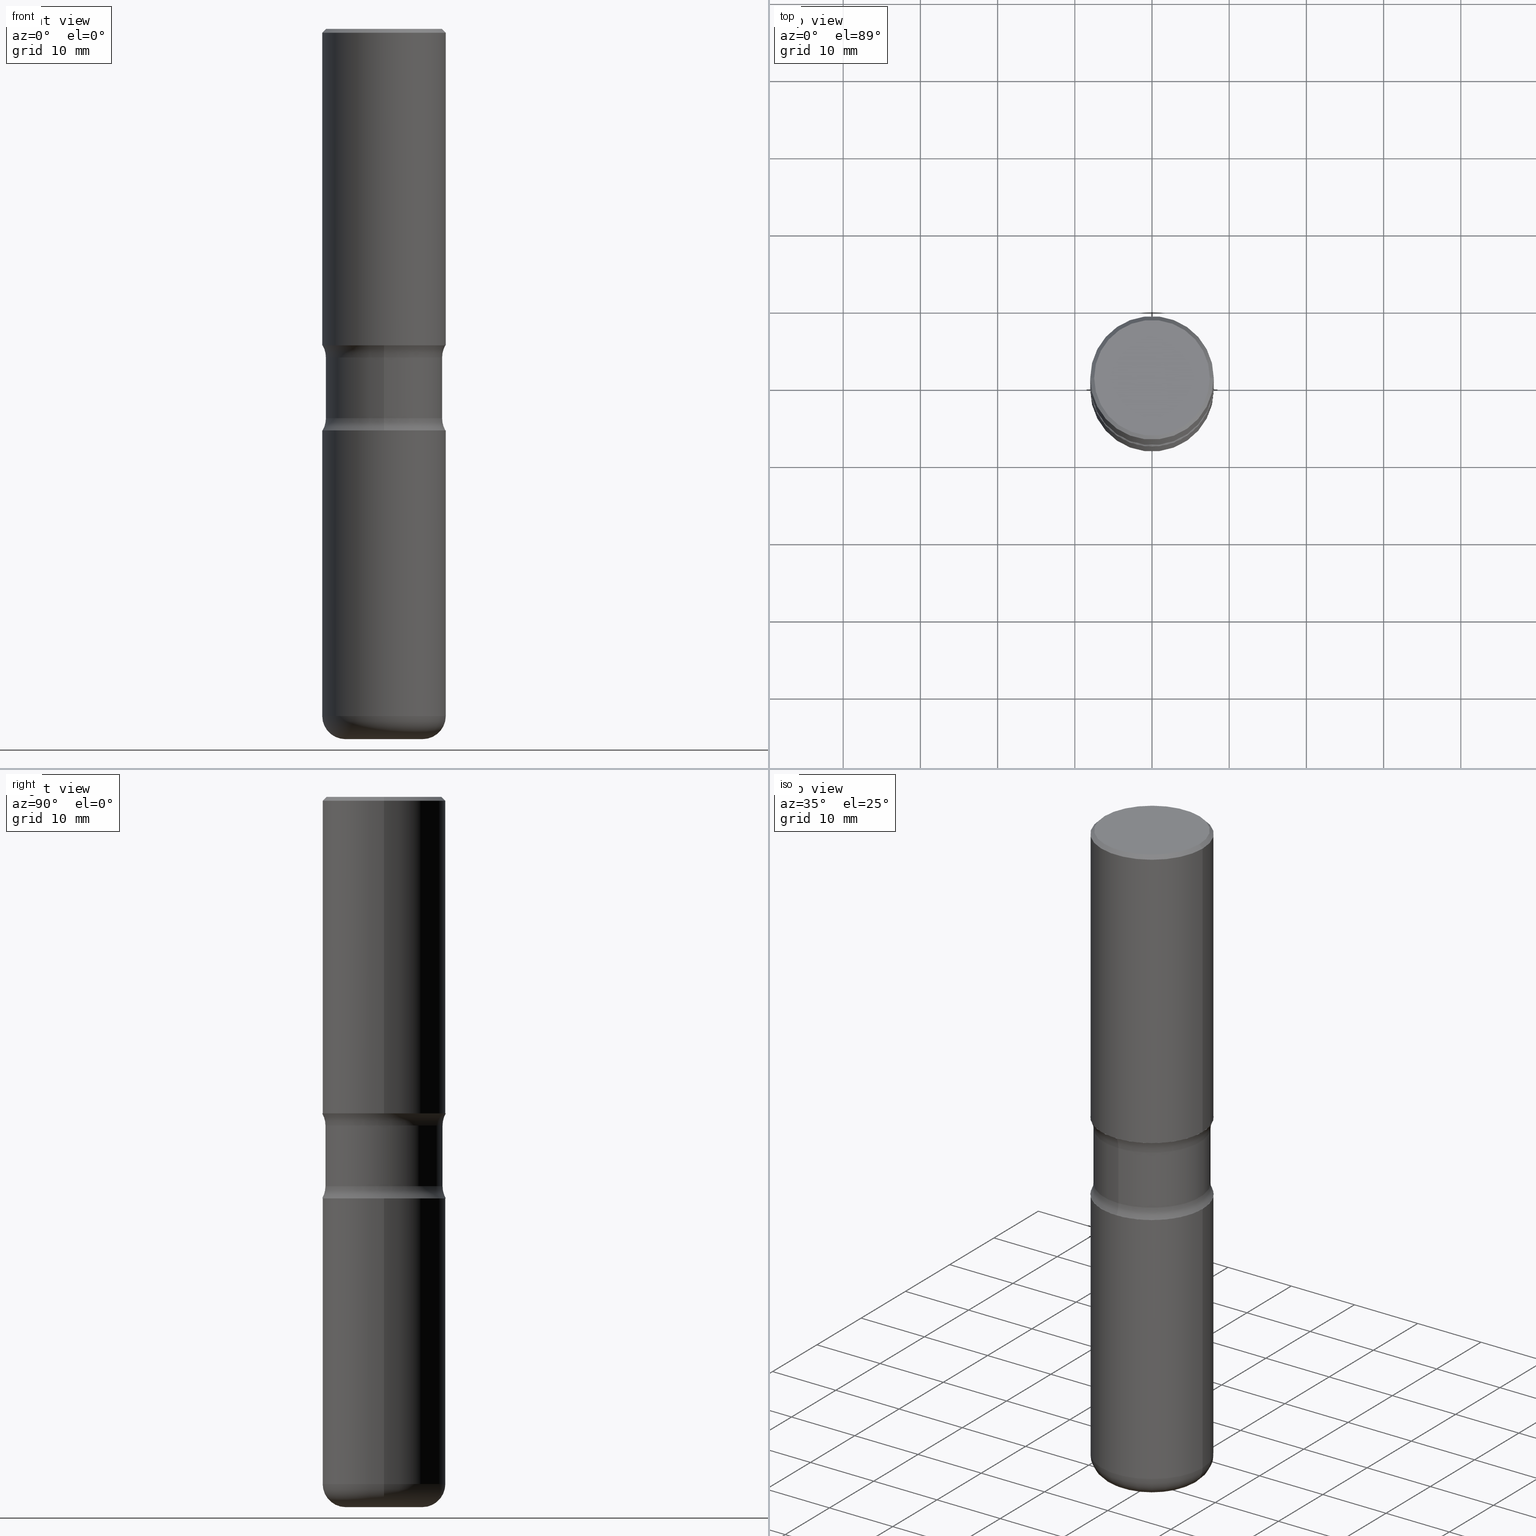
[diagram: canonical four-view strip — front | top / right | iso, engineering-drawing reading convention]
A machine part, canonical four-view strip (front | top / right | iso — engineering-drawing reading convention). The complete STEP part file that produces these views, byte-faithful:
ISO-10303-21;
HEADER;
FILE_DESCRIPTION (( 'STEP AP203' ),
    '1' );
FILE_NAME ('44752.STEP',
    '2024-03-02T02:47:02',
    ( '' ),
    ( '' ),
    'SwSTEP 2.0',
    'SolidWorks 2023',
    '' );
FILE_SCHEMA (( 'CONFIG_CONTROL_DESIGN' ));
ENDSEC;

DATA;
#1 = AXIS2_PLACEMENT_3D ( 'NONE', #288, #77, #419 ) ;
#2 = PERSON_AND_ORGANIZATION ( #9, #462 ) ;
#3 = ORIENTED_EDGE ( 'NONE', *, *, #141, .F. ) ;
#4 = DIRECTION ( 'NONE',  ( 2.445468806185136597E-29, -3.491481338843145583E-15, -1.000000000000000000 ) ) ;
#5 = ORIENTED_EDGE ( 'NONE', *, *, #149, .T. ) ;
#6 = ORIENTED_EDGE ( 'NONE', *, *, #249, .F. ) ;
#7 = DIRECTION ( 'NONE',  ( -6.982962677686265922E-15, -1.000000000000000000, 3.511873183492796268E-15 ) ) ;
#8 = ADVANCED_FACE ( 'NONE', ( #398 ), #238, .F. ) ;
#9 = PERSON ( 'UNSPECIFIED', 'UNSPECIFIED', 'UNSPECIFIED', ('UNSPECIFIED'), ('UNSPECIFIED'), ('UNSPECIFIED') ) ;
#10 = CC_DESIGN_PERSON_AND_ORGANIZATION_ASSIGNMENT ( #2, #390, ( #168 ) ) ;
#11 = EDGE_LOOP ( 'NONE', ( #354, #361 ) ) ;
#12 = ORIENTED_EDGE ( 'NONE', *, *, #529, .F. ) ;
#13 = AXIS2_PLACEMENT_3D ( 'NONE', #512, #4, #306 ) ;
#14 = DIRECTION ( 'NONE',  ( 6.982962677686265922E-15, 1.000000000000000000, -3.511873183492796268E-15 ) ) ;
#15 = CARTESIAN_POINT ( 'NONE',  ( 1.244624770094737813E-28, 3.506576687062802322E-15, -2.047200000000000131 ) ) ;
#16 = CONICAL_SURFACE ( 'NONE', #366, 0.3149500000000001743, 0.7853981633974460586 ) ;
#17 = VERTEX_POINT ( 'NONE', #165 ) ;
#18 = EDGE_CURVE ( 'NONE', #247, #268, #459, .T. ) ;
#19 = FACE_OUTER_BOUND ( 'NONE', #250, .T. ) ;
#20 = COORDINATED_UNIVERSAL_TIME_OFFSET ( 5, 0, .BEHIND. ) ;
#21 = EDGE_LOOP ( 'NONE', ( #323, #526 ) ) ;
#22 = VERTEX_POINT ( 'NONE', #83 ) ;
#23 = DIRECTION ( 'NONE',  ( -2.445468806185136597E-29, 3.491481338843145583E-15, 1.000000000000000000 ) ) ;
#24 = SECURITY_CLASSIFICATION_LEVEL ( 'unclassified' ) ;
#25 = DIRECTION ( 'NONE',  ( 6.982962677686264344E-15, 1.000000000000000000, -3.469564049740291192E-15 ) ) ;
#26 = VERTEX_POINT ( 'NONE', #202 ) ;
#27 = ORIENTED_EDGE ( 'NONE', *, *, #501, .F. ) ;
#28 = APPROVAL ( #112, 'UNSPECIFIED' ) ;
#29 = FACE_OUTER_BOUND ( 'NONE', #560, .T. ) ;
#30 = PERSON_AND_ORGANIZATION ( #9, #462 ) ;
#31 = AXIS2_PLACEMENT_3D ( 'NONE', #368, #537, #153 ) ;
#32 = ORIENTED_EDGE ( 'NONE', *, *, #115, .T. ) ;
#33 = LOCAL_TIME ( 21, 47, 2.000000000000000000, #95 ) ;
#34 = ORIENTED_EDGE ( 'NONE', *, *, #155, .F. ) ;
#35 = FACE_OUTER_BOUND ( 'NONE', #307, .T. ) ;
#36 = APPROVAL_ROLE ( '' ) ;
#37 = FACE_OUTER_BOUND ( 'NONE', #409, .T. ) ;
#38 = PERSON_AND_ORGANIZATION ( #9, #462 ) ;
#39 = DIRECTION ( 'NONE',  ( -2.445468806185136877E-29, 3.491481338843145188E-15, 1.000000000000000000 ) ) ;
#40 = ORIENTED_EDGE ( 'NONE', *, *, #399, .F. ) ;
#41 = LINE ( 'NONE', #122, #426 ) ;
#42 = AXIS2_PLACEMENT_3D ( 'NONE', #236, #23, #187 ) ;
#43 = CARTESIAN_POINT ( 'NONE',  ( -2.905420902056200286E-15, -0.4235000000000055387, -1.676083042035703574 ) ) ;
#44 = CARTESIAN_POINT ( 'NONE',  ( 2.957284694000172985E-15, 0.4234999999999939369, -1.676083042035706461 ) ) ;
#45 = CARTESIAN_POINT ( 'NONE',  ( 0.3149500000000002853, -2.199284095337291843E-15, 1.535751875536931531E-29 ) ) ;
#46 = ORIENTED_EDGE ( 'NONE', *, *, #220, .T. ) ;
#47 = CIRCLE ( 'NONE', #124, 0.2984999999999998765 ) ;
#48 = EDGE_CURVE ( 'NONE', #311, #247, #496, .T. ) ;
#49 = AXIS2_PLACEMENT_3D ( 'NONE', #147, #481, #106 ) ;
#50 = EDGE_LOOP ( 'NONE', ( #403, #521, #358, #6 ) ) ;
#51 = DIRECTION ( 'NONE',  ( -2.445468806185136597E-29, 3.491481338843145583E-15, 1.000000000000000000 ) ) ;
#52 = EDGE_CURVE ( 'NONE', #371, #256, #215, .T. ) ;
#53 =( CONVERSION_BASED_UNIT ( 'INCH', #435 ) LENGTH_UNIT ( ) NAMED_UNIT ( #87 ) );
#54 = FACE_OUTER_BOUND ( 'NONE', #211, .T. ) ;
#55 = AXIS2_PLACEMENT_3D ( 'NONE', #319, #376, #364 ) ;
#56 = APPROVAL_ROLE ( '' ) ;
#57 = FACE_OUTER_BOUND ( 'NONE', #510, .T. ) ;
#58 = ORIENTED_EDGE ( 'NONE', *, *, #286, .F. ) ;
#59 = CARTESIAN_POINT ( 'NONE',  ( -0.3149500000000001743, 2.129454468560427756E-15, -0.02000000000000006981 ) ) ;
#60 = DIRECTION ( 'NONE',  ( -2.445468806185136597E-29, 3.491481338843145583E-15, 1.000000000000000000 ) ) ;
#61 = ORIENTED_EDGE ( 'NONE', *, *, #146, .F. ) ;
#62 = DIRECTION ( 'NONE',  ( 2.431229257173367832E-29, -3.511873183492796268E-15, -1.000000000000000000 ) ) ;
#63 = TOROIDAL_SURFACE ( 'NONE', #438, 0.4234999999999998210, 0.1250000000000000000 ) ;
#64 = ORIENTED_EDGE ( 'NONE', *, *, #249, .T. ) ;
#65 = ORIENTED_EDGE ( 'NONE', *, *, #333, .T. ) ;
#66 = DIRECTION ( 'NONE',  ( 6.982962677686265922E-15, 1.000000000000000000, -3.660767830705881533E-15 ) ) ;
#67 = EDGE_LOOP ( 'NONE', ( #27, #523, #46, #479 ) ) ;
#68 = PLANE ( 'NONE',  #432 ) ;
#69 = ADVANCED_FACE ( 'NONE', ( #160 ), #114, .F. ) ;
#70 = DIRECTION ( 'NONE',  ( 1.000000000000000000, -6.982962677686265922E-15, 0.000000000000000000 ) ) ;
#71 = EDGE_LOOP ( 'NONE', ( #316, #402, #540, #421 ) ) ;
#72 = CYLINDRICAL_SURFACE ( 'NONE', #554, 0.2984999999999998210 ) ;
#73 = CIRCLE ( 'NONE', #193, 0.3149500000000003408 ) ;
#74 = DIRECTION ( 'NONE',  ( 2.431229257173367832E-29, -3.511873183492796268E-15, -1.000000000000000000 ) ) ;
#75 = PERSON_AND_ORGANIZATION_ROLE ( 'creator' ) ;
#76 = TOROIDAL_SURFACE ( 'NONE', #505, 0.4234999999999997100, 0.1249999999999999029 ) ;
#77 = DIRECTION ( 'NONE',  ( -2.445468806185136597E-29, 3.491481338843145583E-15, 1.000000000000000000 ) ) ;
#78 = PRODUCT_DEFINITION_SHAPE ( 'NONE', 'NONE',  #263 ) ;
#79 = DATE_AND_TIME ( #204, #223 ) ;
#80 = LINE ( 'NONE', #162, #84 ) ;
#81 = UNCERTAINTY_MEASURE_WITH_UNIT (LENGTH_MEASURE( 1.000000000000000082E-05 ), #53, 'distance_accuracy_value', 'NONE');
#82 = DIRECTION ( 'NONE',  ( -1.000000000000000000, 6.982962677686265922E-15, -4.876176775795935793E-29 ) ) ;
#83 = CARTESIAN_POINT ( 'NONE',  ( -0.3149500000000003408, -6.148604816253523528E-16, -1.614099999999999424 ) ) ;
#84 = VECTOR ( 'NONE', #533, 39.37007874015748143 ) ;
#85 = CARTESIAN_POINT ( 'NONE',  ( -0.3149500000000002298, -7.453101257816594857E-15, -2.047199999999999243 ) ) ;
#86 = CYLINDRICAL_SURFACE ( 'NONE', #484, 0.3149500000000002853 ) ;
#87 = DIMENSIONAL_EXPONENTS ( 1.000000000000000000, 0.000000000000000000, 0.000000000000000000, 0.000000000000000000, 0.000000000000000000, 0.000000000000000000, 0.000000000000000000 ) ;
#88 = CIRCLE ( 'NONE', #134, 0.3149500000000001743 ) ;
#89 = MANIFOLD_SOLID_BREP ( 'Body-Move/Copy2[1]', #337 ) ;
#90 = DIRECTION ( 'NONE',  ( 1.000000000000000000, -6.860497997771530774E-15, 4.840549151551353916E-29 ) ) ;
#91 = AXIS2_PLACEMENT_3D ( 'NONE', #299, #431, #262 ) ;
#92 = CLOSED_SHELL ( 'NONE', ( #345, #133, #203, #184, #466, #502, #102, #310 ) ) ;
#93 = CARTESIAN_POINT ( 'NONE',  ( 3.947231200063427485E-29, -5.635600029026719491E-15, -1.614099999999999424 ) ) ;
#94 = ORIENTED_EDGE ( 'NONE', *, *, #460, .F. ) ;
#95 = COORDINATED_UNIVERSAL_TIME_OFFSET ( 5, 0, .BEHIND. ) ;
#96 = CARTESIAN_POINT ( 'NONE',  ( 8.835063574218829825E-29, -1.267825848624413908E-14, -3.621999999999999442 ) ) ;
#97 = EDGE_CURVE ( 'NONE', #557, #265, #151, .T. ) ;
#98 = AXIS2_PLACEMENT_3D ( 'NONE', #119, #284, #456 ) ;
#99 = LOCAL_TIME ( 21, 47, 2.000000000000000000, #325 ) ;
#100 = ORIENTED_EDGE ( 'NONE', *, *, #383, .T. ) ;
#101 = DATE_AND_TIME ( #260, #33 ) ;
#102 = ADVANCED_FACE ( 'NONE', ( #381 ), #254, .F. ) ;
#103 = VERTEX_POINT ( 'NONE', #452 ) ;
#104 = ORIENTED_EDGE ( 'NONE', *, *, #48, .T. ) ;
#105 = CARTESIAN_POINT ( 'NONE',  ( 5.006363740022209438E-29, -7.147760596879685046E-15, -2.047199999999999243 ) ) ;
#106 = DIRECTION ( 'NONE',  ( 1.000000000000000000, -6.982962677686268288E-15, 0.000000000000000000 ) ) ;
#107 = AXIS2_PLACEMENT_3D ( 'NONE', #527, #412, #477 ) ;
#108 = EDGE_LOOP ( 'NONE', ( #61, #100, #461, #472 ) ) ;
#109 = FACE_OUTER_BOUND ( 'NONE', #434, .T. ) ;
#110 = CARTESIAN_POINT ( 'NONE',  ( 4.104093333986238710E-29, -5.844444904265456773E-15, -1.676083042035705128 ) ) ;
#111 = EDGE_LOOP ( 'NONE', ( #40, #556, #64, #34 ) ) ;
#112 = APPROVAL_STATUS ( 'not_yet_approved' ) ;
#113 = CARTESIAN_POINT ( 'NONE',  ( 4.890937612370289799E-31, -6.982962677686315028E-17, -0.02000000000000006981 ) ) ;
#114 = PLANE ( 'NONE',  #317 ) ;
#115 = EDGE_CURVE ( 'NONE', #480, #17, #235, .T. ) ;
#116 = AXIS2_PLACEMENT_3D ( 'NONE', #43, #90, #420 ) ;
#117 = CARTESIAN_POINT ( 'NONE',  ( 0.3149500000000001743, -2.230543471175008239E-15, -0.02000000000000006981 ) ) ;
#118 = CALENDAR_DATE ( 2024, 1, 3 ) ;
#119 = CARTESIAN_POINT ( 'NONE',  ( 3.947231200063427485E-29, -5.635600029026719491E-15, -1.614099999999999424 ) ) ;
#120 = AXIS2_PLACEMENT_3D ( 'NONE', #314, #444, #157 ) ;
#121 = CARTESIAN_POINT ( 'NONE',  ( 4.854786144211427985E-29, -6.931347962287286894E-15, -1.985216957964293094 ) ) ;
#122 = CARTESIAN_POINT ( 'NONE',  ( 2.084414359289437372E-15, 0.2984999999999871645, -3.622000000000000330 ) ) ;
#123 = CARTESIAN_POINT ( 'NONE',  ( -0.2949500000000001565, 2.094539655171996896E-15, 1.280553747028672311E-17 ) ) ;
#124 = AXIS2_PLACEMENT_3D ( 'NONE', #229, #201, #542 ) ;
#125 = CC_DESIGN_PERSON_AND_ORGANIZATION_ASSIGNMENT ( #389, #75, ( #263 ) ) ;
#126 = DIRECTION ( 'NONE',  ( 2.431229257173367832E-29, -3.511873183492796268E-15, -1.000000000000000000 ) ) ;
#127 = CIRCLE ( 'NONE', #49, 0.3149500000000003408 ) ;
#128 = AXIS2_PLACEMENT_3D ( 'NONE', #210, #382, #507 ) ;
#129 = DIRECTION ( 'NONE',  ( 2.431229257173367832E-29, -3.511873183492796268E-15, -1.000000000000000000 ) ) ;
#130 = CARTESIAN_POINT ( 'NONE',  ( -2.905420902056193186E-15, -0.4235000000000067044, -1.985216957964291762 ) ) ;
#131 = ORIENTED_EDGE ( 'NONE', *, *, #493, .F. ) ;
#132 = LINE ( 'NONE', #548, #469 ) ;
#133 = ADVANCED_FACE ( 'NONE', ( #37 ), #63, .F. ) ;
#134 = AXIS2_PLACEMENT_3D ( 'NONE', #295, #205, #377 ) ;
#135 = APPROVAL_STATUS ( 'not_yet_approved' ) ;
#136 = EDGE_LOOP ( 'NONE', ( #178, #218 ) ) ;
#137 =( LENGTH_UNIT ( ) NAMED_UNIT ( * ) SI_UNIT ( $, .METRE. ) );
#138 = DIRECTION ( 'NONE',  ( 6.982962677686266711E-15, 1.000000000000000000, -3.660767830705882322E-15 ) ) ;
#139 = APPROVAL ( #397, 'UNSPECIFIED' ) ;
#140 = LOCAL_TIME ( 21, 47, 2.000000000000000000, #20 ) ;
#141 = EDGE_CURVE ( 'NONE', #371, #427, #41, .T. ) ;
#142 = ORIENTED_EDGE ( 'NONE', *, *, #485, .T. ) ;
#143 = ORIENTED_EDGE ( 'NONE', *, *, #522, .T. ) ;
#144 = CARTESIAN_POINT ( 'NONE',  ( 0.000000000000000000, 0.000000000000000000, 0.000000000000000000 ) ) ;
#145 = APPROVAL_DATE_TIME ( #375, #139 ) ;
#146 = EDGE_CURVE ( 'NONE', #22, #268, #327, .T. ) ;
#147 = CARTESIAN_POINT ( 'NONE',  ( 8.568922696872717137E-29, -1.223415061130638137E-14, -3.503999999999999559 ) ) ;
#148 = PERSON_AND_ORGANIZATION ( #9, #462 ) ;
#149 = EDGE_CURVE ( 'NONE', #391, #256, #88, .T. ) ;
#150 = VERTEX_POINT ( 'NONE', #123 ) ;
#151 = CIRCLE ( 'NONE', #417, 0.1180000000000000770 ) ;
#152 = CIRCLE ( 'NONE', #206, 0.3149500000000002298 ) ;
#153 = DIRECTION ( 'NONE',  ( 1.000000000000000000, -6.982962677686266711E-15, 4.883557194083112901E-29 ) ) ;
#154 = DIRECTION ( 'NONE',  ( -2.445468806185136597E-29, 3.491481338843145583E-15, 1.000000000000000000 ) ) ;
#155 = EDGE_CURVE ( 'NONE', #483, #508, #152, .T. ) ;
#156 = VERTEX_POINT ( 'NONE', #289 ) ;
#157 = DIRECTION ( 'NONE',  ( 1.000000000000000000, -6.982962677686267499E-15, 4.876176775795936353E-29 ) ) ;
#158 = APPROVAL_ROLE ( '' ) ;
#159 = DIRECTION ( 'NONE',  ( -2.445468806185136597E-29, 3.491481338843145583E-15, 1.000000000000000000 ) ) ;
#160 = FACE_OUTER_BOUND ( 'NONE', #11, .T. ) ;
#161 = CIRCLE ( 'NONE', #328, 0.1969500000000003470 ) ;
#162 = CARTESIAN_POINT ( 'NONE',  ( -0.3149500000000002853, 2.237854346276437562E-15, -1.549218606675783797E-29 ) ) ;
#163 = TOROIDAL_SURFACE ( 'NONE', #463, 0.1969500000000003470, 0.1180000000000001187 ) ;
#164 = DIRECTION ( 'NONE',  ( 0.7071067811865459074, -7.319954787623249734E-15, -0.7071067811865491270 ) ) ;
#165 = CARTESIAN_POINT ( 'NONE',  ( -2.160713844398094848E-15, -0.3149500000000073907, -2.047199999999997910 ) ) ;
#166 = DIRECTION ( 'NONE',  ( -0.7071067811865459074, 2.468850131082240100E-15, -0.7071067811865491270 ) ) ;
#167 = DIRECTION ( 'NONE',  ( 1.000000000000000000, -6.982962677686265922E-15, 4.876176775795935793E-29 ) ) ;
#168 = PRODUCT ( '44752', '44752', '', ( #217 ) ) ;
#169 = ADVANCED_FACE ( 'NONE', ( #457 ), #86, .T. ) ;
#170 = AXIS2_PLACEMENT_3D ( 'NONE', #110, #447, #66 ) ;
#171 = CIRCLE ( 'NONE', #511, 0.1250000000000000000 ) ;
#172 = CC_DESIGN_SECURITY_CLASSIFICATION ( #367, ( #338 ) ) ;
#173 = DIRECTION ( 'NONE',  ( 6.982962677686266711E-15, 1.000000000000000000, -3.660767830705882322E-15 ) ) ;
#174 = ORIENTED_EDGE ( 'NONE', *, *, #515, .T. ) ;
#175 = CARTESIAN_POINT ( 'NONE',  ( 0.3149500000000002298, -9.347044692216974917E-15, -2.047199999999999243 ) ) ;
#176 = DIRECTION ( 'NONE',  ( 6.860497997771529985E-15, 1.000000000000000000, 0.000000000000000000 ) ) ;
#177 = DIRECTION ( 'NONE',  ( -2.445468806185136597E-29, 3.491481338843145583E-15, 1.000000000000000000 ) ) ;
#178 = ORIENTED_EDGE ( 'NONE', *, *, #515, .F. ) ;
#179 =( GEOMETRIC_REPRESENTATION_CONTEXT ( 3 ) GLOBAL_UNCERTAINTY_ASSIGNED_CONTEXT ( ( #81 ) ) GLOBAL_UNIT_ASSIGNED_CONTEXT ( ( #53, #357, #302 ) ) REPRESENTATION_CONTEXT ( 'NONE', 'WORKASPACE' ) );
#180 = EDGE_LOOP ( 'NONE', ( #296, #365, #65, #348 ) ) ;
#181 = VECTOR ( 'NONE', #199, 39.37007874015748143 ) ;
#182 = CARTESIAN_POINT ( 'NONE',  ( 2.199284095337330103E-15, 0.3149499999999945676, -1.614100000000000312 ) ) ;
#183 = CARTESIAN_POINT ( 'NONE',  ( -0.1969500000000003470, -1.062151387812014781E-14, -3.621999999999999886 ) ) ;
#184 = ADVANCED_FACE ( 'NONE', ( #532 ), #534, .F. ) ;
#185 = ORIENTED_EDGE ( 'NONE', *, *, #18, .T. ) ;
#186 = FACE_OUTER_BOUND ( 'NONE', #422, .T. ) ;
#187 = DIRECTION ( 'NONE',  ( 1.000000000000000000, -6.982962677686268288E-15, 0.000000000000000000 ) ) ;
#188 = ORIENTED_EDGE ( 'NONE', *, *, #255, .F. ) ;
#189 = CC_DESIGN_DATE_AND_TIME_ASSIGNMENT ( #79, #309, ( #263 ) ) ;
#190 = DIRECTION ( 'NONE',  ( 1.000000000000000000, -6.982962677686266711E-15, 4.883557194083112901E-29 ) ) ;
#191 = ORIENTED_EDGE ( 'NONE', *, *, #488, .T. ) ;
#192 = ADVANCED_BREP_SHAPE_REPRESENTATION ( '44752', ( #89, #446, #259, #91 ), #179 ) ;
#193 = AXIS2_PLACEMENT_3D ( 'NONE', #93, #519, #342 ) ;
#194 = VECTOR ( 'NONE', #39, 39.37007874015748143 ) ;
#195 = FACE_OUTER_BOUND ( 'NONE', #136, .T. ) ;
#196 = PERSON_AND_ORGANIZATION_ROLE ( 'design_supplier' ) ;
#197 = CIRCLE ( 'NONE', #116, 0.1249999999999999029 ) ;
#198 = ORIENTED_EDGE ( 'NONE', *, *, #333, .F. ) ;
#199 = DIRECTION ( 'NONE',  ( -2.445468806185136877E-29, 3.491481338843145188E-15, 1.000000000000000000 ) ) ;
#200 = ORIENTED_EDGE ( 'NONE', *, *, #141, .T. ) ;
#201 = DIRECTION ( 'NONE',  ( 2.431229257173367832E-29, -3.511873183492796268E-15, -1.000000000000000000 ) ) ;
#202 = CARTESIAN_POINT ( 'NONE',  ( -2.104286248366424083E-15, -0.2985000000000068154, -1.985216957964291984 ) ) ;
#203 = ADVANCED_FACE ( 'NONE', ( #277 ), #76, .F. ) ;
#204 = CALENDAR_DATE ( 2024, 1, 3 ) ;
#205 = DIRECTION ( 'NONE',  ( 2.431229257173367832E-29, -3.511873183492796268E-15, -1.000000000000000000 ) ) ;
#206 = AXIS2_PLACEMENT_3D ( 'NONE', #207, #379, #500 ) ;
#207 = CARTESIAN_POINT ( 'NONE',  ( 5.006363740022209438E-29, -7.147760596879685046E-15, -2.047199999999999243 ) ) ;
#208 = APPROVAL ( #135, 'UNSPECIFIED' ) ;
#209 = DIRECTION ( 'NONE',  ( -1.000000000000000000, 6.982962677686265922E-15, -4.876176775795935793E-29 ) ) ;
#210 = CARTESIAN_POINT ( 'NONE',  ( -3.131554243005663153E-46, 4.471029511141347348E-32, 1.280553747030124924E-17 ) ) ;
#211 = EDGE_LOOP ( 'NONE', ( #395, #227, #465, #3 ) ) ;
#212 = CIRCLE ( 'NONE', #303, 0.2984999999999998210 ) ;
#213 = CIRCLE ( 'NONE', #42, 0.3149500000000003408 ) ;
#214 = AXIS2_PLACEMENT_3D ( 'NONE', #15, #257, #7 ) ;
#215 = CIRCLE ( 'NONE', #344, 0.1249999999999999029 ) ;
#216 = AXIS2_PLACEMENT_3D ( 'NONE', #113, #154, #498 ) ;
#217 = MECHANICAL_CONTEXT ( 'NONE', #350, 'mechanical' ) ;
#218 = ORIENTED_EDGE ( 'NONE', *, *, #522, .F. ) ;
#219 = DIRECTION ( 'NONE',  ( 1.000000000000000000, -6.860497997771530774E-15, 4.840549151551353916E-29 ) ) ;
#220 = EDGE_CURVE ( 'NONE', #480, #427, #171, .T. ) ;
#221 = FACE_OUTER_BOUND ( 'NONE', #111, .T. ) ;
#222 = ORIENTED_EDGE ( 'NONE', *, *, #18, .F. ) ;
#223 = LOCAL_TIME ( 21, 47, 2.000000000000000000, #451 ) ;
#224 = ORIENTED_EDGE ( 'NONE', *, *, #97, .T. ) ;
#225 = AXIS2_PLACEMENT_3D ( 'NONE', #105, #266, #437 ) ;
#226 = CARTESIAN_POINT ( 'NONE',  ( 3.953398348740424918E-29, -5.626768321108955444E-15, -1.614099999999999424 ) ) ;
#227 = ORIENTED_EDGE ( 'NONE', *, *, #255, .T. ) ;
#228 = CARTESIAN_POINT ( 'NONE',  ( 8.568922696872717137E-29, -1.223415061130638137E-14, -3.503999999999999559 ) ) ;
#229 = CARTESIAN_POINT ( 'NONE',  ( 4.104093333986238710E-29, -5.844444904265456773E-15, -1.676083042035705128 ) ) ;
#230 = EDGE_LOOP ( 'NONE', ( #233, #143, #224, #394 ) ) ;
#231 = ORIENTED_EDGE ( 'NONE', *, *, #501, .T. ) ;
#232 = CARTESIAN_POINT ( 'NONE',  ( 2.059624841783565247E-15, 0.2949500000000001565, -1.023409652156635730E-15 ) ) ;
#233 = ORIENTED_EDGE ( 'NONE', *, *, #392, .F. ) ;
#234 = AXIS2_PLACEMENT_3D ( 'NONE', #226, #322, #25 ) ;
#235 = CIRCLE ( 'NONE', #355, 0.3149500000000002298 ) ;
#236 = CARTESIAN_POINT ( 'NONE',  ( 8.568922696872717137E-29, -1.223415061130638137E-14, -3.503999999999999559 ) ) ;
#237 = DATE_TIME_ROLE ( 'classification_date' ) ;
#238 = PLANE ( 'NONE',  #244 ) ;
#239 = EDGE_CURVE ( 'NONE', #103, #265, #213, .T. ) ;
#240 = FACE_OUTER_BOUND ( 'NONE', #50, .T. ) ;
#241 = CARTESIAN_POINT ( 'NONE',  ( 4.854786144211427985E-29, -6.931347962287286894E-15, -1.985216957964293094 ) ) ;
#242 = ADVANCED_FACE ( 'NONE', ( #35 ), #492, .T. ) ;
#243 = CARTESIAN_POINT ( 'NONE',  ( 1.244624770094737813E-28, 3.506576687062802322E-15, -2.047200000000000131 ) ) ;
#244 = AXIS2_PLACEMENT_3D ( 'NONE', #245, #550, #167 ) ;
#245 = CARTESIAN_POINT ( 'NONE',  ( 3.947231200063427485E-29, -5.635600029026719491E-15, -1.614099999999999424 ) ) ;
#246 = DIRECTION ( 'NONE',  ( -2.445468806185136597E-29, 3.491481338843145583E-15, 1.000000000000000000 ) ) ;
#247 = VERTEX_POINT ( 'NONE', #117 ) ;
#248 = EDGE_CURVE ( 'NONE', #427, #26, #410, .T. ) ;
#249 = EDGE_CURVE ( 'NONE', #265, #508, #486, .T. ) ;
#250 = EDGE_LOOP ( 'NONE', ( #276, #104, #185, #198 ) ) ;
#251 = PRODUCT_RELATED_PRODUCT_CATEGORY ( 'detail', '', ( #168 ) ) ;
#252 = CIRCLE ( 'NONE', #55, 0.1180000000000000770 ) ;
#253 = CARTESIAN_POINT ( 'NONE',  ( -3.131554243005663153E-46, 4.471029511141347348E-32, 1.280553747030124924E-17 ) ) ;
#254 = TOROIDAL_SURFACE ( 'NONE', #378, 0.4234999999999998210, 0.1250000000000000000 ) ;
#255 = EDGE_CURVE ( 'NONE', #343, #26, #274, .T. ) ;
#256 = VERTEX_POINT ( 'NONE', #182 ) ;
#257 = DIRECTION ( 'NONE',  ( -2.431229257173367552E-29, 3.511873183492796268E-15, 1.000000000000000000 ) ) ;
#258 = CC_DESIGN_PERSON_AND_ORGANIZATION_ASSIGNMENT ( #267, #196, ( #338 ) ) ;
#259 = MANIFOLD_SOLID_BREP ( 'Body-Move/Copy2[4]', #92 ) ;
#260 = CALENDAR_DATE ( 2024, 1, 3 ) ;
#261 = TOROIDAL_SURFACE ( 'NONE', #31, 0.1969500000000003470, 0.1180000000000001187 ) ;
#262 = DIRECTION ( 'NONE',  ( 1.000000000000000000, 0.000000000000000000, 0.000000000000000000 ) ) ;
#263 = PRODUCT_DEFINITION ( 'UNKNOWN', '', #338, #406 ) ;
#264 = APPROVAL_DATE_TIME ( #101, #208 ) ;
#265 = VERTEX_POINT ( 'NONE', #283 ) ;
#266 = DIRECTION ( 'NONE',  ( 2.431229257173367832E-29, -3.511873183492796268E-15, -1.000000000000000000 ) ) ;
#267 = PERSON_AND_ORGANIZATION ( #9, #462 ) ;
#268 = VERTEX_POINT ( 'NONE', #59 ) ;
#269 = ORIENTED_EDGE ( 'NONE', *, *, #529, .T. ) ;
#270 = ADVANCED_FACE ( 'NONE', ( #19 ), #16, .T. ) ;
#271 = VECTOR ( 'NONE', #164, 39.37007874015748143 ) ;
#272 = FACE_OUTER_BOUND ( 'NONE', #230, .T. ) ;
#273 = DIRECTION ( 'NONE',  ( -2.445468806185136597E-29, 3.491481338843145583E-15, 1.000000000000000000 ) ) ;
#274 = LINE ( 'NONE', #372, #497 ) ;
#275 = APPROVAL_DATE_TIME ( #401, #28 ) ;
#276 = ORIENTED_EDGE ( 'NONE', *, *, #476, .F. ) ;
#277 = FACE_OUTER_BOUND ( 'NONE', #475, .T. ) ;
#278 = CALENDAR_DATE ( 2024, 1, 3 ) ;
#279 = EDGE_CURVE ( 'NONE', #17, #480, #293, .T. ) ;
#280 = DIRECTION ( 'NONE',  ( -1.000000000000000000, 6.982962677686265922E-15, -4.883557194083112340E-29 ) ) ;
#281 = CIRCLE ( 'NONE', #216, 0.3149500000000001743 ) ;
#282 = AXIS2_PLACEMENT_3D ( 'NONE', #373, #273, #360 ) ;
#283 = CARTESIAN_POINT ( 'NONE',  ( 0.3149500000000003963, -1.443343470664367440E-14, -3.503999999999999559 ) ) ;
#284 = DIRECTION ( 'NONE',  ( 2.431229257173367552E-29, -3.511873183492796268E-15, -1.000000000000000000 ) ) ;
#285 = DIRECTION ( 'NONE',  ( 2.431229257173367832E-29, -3.511873183492796268E-15, -1.000000000000000000 ) ) ;
#286 = EDGE_CURVE ( 'NONE', #265, #103, #127, .T. ) ;
#287 = ADVANCED_FACE ( 'NONE', ( #272 ), #163, .T. ) ;
#288 = CARTESIAN_POINT ( 'NONE',  ( 4.890937612370289799E-31, -6.982962677686315028E-17, -0.02000000000000006981 ) ) ;
#289 = CARTESIAN_POINT ( 'NONE',  ( 0.3149500000000003408, -7.834884124364010939E-15, -1.614099999999999424 ) ) ;
#290 = CARTESIAN_POINT ( 'NONE',  ( 5.006363740022209438E-29, -7.147760596879685046E-15, -2.047199999999999243 ) ) ;
#291 = ADVANCED_FACE ( 'NONE', ( #109 ), #68, .F. ) ;
#292 = LOCAL_TIME ( 21, 47, 2.000000000000000000, #538 ) ;
#293 = CIRCLE ( 'NONE', #225, 0.3149500000000002298 ) ;
#294 = CIRCLE ( 'NONE', #495, 0.1969500000000003470 ) ;
#295 = CARTESIAN_POINT ( 'NONE',  ( 3.953398348740424918E-29, -5.626768321108955444E-15, -1.614099999999999424 ) ) ;
#296 = ORIENTED_EDGE ( 'NONE', *, *, #48, .F. ) ;
#297 = PLANE ( 'NONE',  #214 ) ;
#298 = CIRCLE ( 'NONE', #305, 0.3149500000000002298 ) ;
#299 = CARTESIAN_POINT ( 'NONE',  ( 0.000000000000000000, 0.000000000000000000, 0.000000000000000000 ) ) ;
#300 = ADVANCED_FACE ( 'NONE', ( #29 ), #261, .T. ) ;
#301 = DIRECTION ( 'NONE',  ( 6.982962677686266711E-15, 1.000000000000000000, -3.660767830705882322E-15 ) ) ;
#302 =( NAMED_UNIT ( * ) SI_UNIT ( $, .STERADIAN. ) SOLID_ANGLE_UNIT ( ) );
#303 = AXIS2_PLACEMENT_3D ( 'NONE', #525, #513, #301 ) ;
#304 = ADVANCED_FACE ( 'NONE', ( #195 ), #418, .T. ) ;
#305 = AXIS2_PLACEMENT_3D ( 'NONE', #290, #51, #458 ) ;
#306 = DIRECTION ( 'NONE',  ( -1.000000000000000000, 6.982962677686265922E-15, 0.000000000000000000 ) ) ;
#307 = EDGE_LOOP ( 'NONE', ( #269, #535, #222, #131 ) ) ;
#308 = DIRECTION ( 'NONE',  ( 2.445468806185136597E-29, -3.491481338843145583E-15, -1.000000000000000000 ) ) ;
#309 = DATE_TIME_ROLE ( 'creation_date' ) ;
#310 = ADVANCED_FACE ( 'NONE', ( #186 ), #72, .T. ) ;
#311 = VERTEX_POINT ( 'NONE', #340 ) ;
#312 = ORIENTED_EDGE ( 'NONE', *, *, #220, .F. ) ;
#313 = APPLICATION_CONTEXT ( 'configuration controlled 3d designs of mechanical parts and assemblies' ) ;
#314 = CARTESIAN_POINT ( 'NONE',  ( 0.000000000000000000, 0.000000000000000000, 0.000000000000000000 ) ) ;
#315 = EDGE_LOOP ( 'NONE', ( #12, #441 ) ) ;
#316 = ORIENTED_EDGE ( 'NONE', *, *, #485, .F. ) ;
#317 = AXIS2_PLACEMENT_3D ( 'NONE', #243, #413, #209 ) ;
#318 = CARTESIAN_POINT ( 'NONE',  ( 4.855668754776393966E-29, -6.930084013723182929E-15, -1.985216957964293094 ) ) ;
#319 = CARTESIAN_POINT ( 'NONE',  ( -0.1969500000000003470, -1.083473669322686277E-14, -3.503999999999999559 ) ) ;
#320 = ORIENTED_EDGE ( 'NONE', *, *, #392, .T. ) ;
#321 = DIRECTION ( 'NONE',  ( -1.000000000000000000, 6.982962677686265922E-15, -4.876176775795935793E-29 ) ) ;
#322 = DIRECTION ( 'NONE',  ( 2.431229257173367832E-29, -3.511873183492796268E-15, -1.000000000000000000 ) ) ;
#323 = ORIENTED_EDGE ( 'NONE', *, *, #428, .F. ) ;
#324 = DIRECTION ( 'NONE',  ( -6.982962677686266711E-15, -1.000000000000000000, 0.000000000000000000 ) ) ;
#325 = COORDINATED_UNIVERSAL_TIME_OFFSET ( 5, 0, .BEHIND. ) ;
#326 = FACE_OUTER_BOUND ( 'NONE', #21, .T. ) ;
#327 = LINE ( 'NONE', #415, #194 ) ;
#328 = AXIS2_PLACEMENT_3D ( 'NONE', #464, #177, #429 ) ;
#329 = CLOSED_SHELL ( 'NONE', ( #242, #270, #558, #291, #8, #169 ) ) ;
#330 = DIRECTION ( 'NONE',  ( 1.000000000000000000, -6.982962677686267499E-15, 4.876176775795936353E-29 ) ) ;
#331 = CARTESIAN_POINT ( 'NONE',  ( 0.1969500000000003470, -1.360944511067669474E-14, -3.503999999999999559 ) ) ;
#332 = DIRECTION ( 'NONE',  ( -6.982962677686264344E-15, -1.000000000000000000, 0.000000000000000000 ) ) ;
#333 = EDGE_CURVE ( 'NONE', #150, #268, #132, .T. ) ;
#334 = CARTESIAN_POINT ( 'NONE',  ( -2.104286248366432366E-15, -0.2985000000000057052, -1.676083042035704018 ) ) ;
#335 = DIRECTION ( 'NONE',  ( -6.982962677686266711E-15, -1.000000000000000000, 3.491481338843145583E-15 ) ) ;
#336 = AXIS2_PLACEMENT_3D ( 'NONE', #487, #543, #330 ) ;
#337 = CLOSED_SHELL ( 'NONE', ( #423, #300, #304, #287, #380, #69 ) ) ;
#338 = PRODUCT_DEFINITION_FORMATION_WITH_SPECIFIED_SOURCE ( 'ANY', '', #168, .NOT_KNOWN. ) ;
#339 = ORIENTED_EDGE ( 'NONE', *, *, #279, .F. ) ;
#340 = CARTESIAN_POINT ( 'NONE',  ( 0.2949500000000001565, -2.127023677808861258E-15, 1.280553747031588939E-17 ) ) ;
#341 = EDGE_CURVE ( 'NONE', #508, #483, #298, .T. ) ;
#342 = DIRECTION ( 'NONE',  ( 1.000000000000000000, -6.982962677686265922E-15, 0.000000000000000000 ) ) ;
#343 = VERTEX_POINT ( 'NONE', #334 ) ;
#345 = ADVANCED_FACE ( 'NONE', ( #54 ), #514, .T. ) ;
#344 = AXIS2_PLACEMENT_3D ( 'NONE', #44, #280, #332 ) ;
#346 = CC_DESIGN_PERSON_AND_ORGANIZATION_ASSIGNMENT ( #369, #363, ( #367 ) ) ;
#347 = APPLICATION_PROTOCOL_DEFINITION ( 'international standard', 'config_control_design', 1994, #313 ) ;
#348 = ORIENTED_EDGE ( 'NONE', *, *, #425, .T. ) ;
#349 = FACE_OUTER_BOUND ( 'NONE', #180, .T. ) ;
#350 = APPLICATION_CONTEXT ( 'configuration controlled 3d designs of mechanical parts and assemblies' ) ;
#351 = PERSON_AND_ORGANIZATION ( #9, #462 ) ;
#352 = CIRCLE ( 'NONE', #234, 0.3149500000000001743 ) ;
#353 = CC_DESIGN_DATE_AND_TIME_ASSIGNMENT ( #445, #237, ( #367 ) ) ;
#354 = ORIENTED_EDGE ( 'NONE', *, *, #341, .T. ) ;
#355 = AXIS2_PLACEMENT_3D ( 'NONE', #416, #499, #449 ) ;
#356 = CARTESIAN_POINT ( 'NONE',  ( 0.3149500000000002853, -2.199284095337291843E-15, 1.535751875536931531E-29 ) ) ;
#357 =( NAMED_UNIT ( * ) PLANE_ANGLE_UNIT ( ) SI_UNIT ( $, .RADIAN. ) );
#358 = ORIENTED_EDGE ( 'NONE', *, *, #341, .F. ) ;
#359 = DIRECTION ( 'NONE',  ( 1.000000000000000000, -6.982962677686267499E-15, 4.876176775795936353E-29 ) ) ;
#360 = DIRECTION ( 'NONE',  ( 1.000000000000000000, -6.982962677686267499E-15, 4.876176775795936353E-29 ) ) ;
#361 = ORIENTED_EDGE ( 'NONE', *, *, #155, .T. ) ;
#362 = CARTESIAN_POINT ( 'NONE',  ( 2.957284694000180873E-15, 0.4234999999999928821, -1.985216957964294426 ) ) ;
#363 = PERSON_AND_ORGANIZATION_ROLE ( 'classification_officer' ) ;
#364 = DIRECTION ( 'NONE',  ( -1.000000000000000000, 7.105427357601009747E-15, 0.000000000000000000 ) ) ;
#365 = ORIENTED_EDGE ( 'NONE', *, *, #488, .F. ) ;
#366 = AXIS2_PLACEMENT_3D ( 'NONE', #524, #308, #439 ) ;
#367 = SECURITY_CLASSIFICATION ( '', '', #24 ) ;
#368 = CARTESIAN_POINT ( 'NONE',  ( 8.568922696872717137E-29, -1.223415061130638137E-14, -3.503999999999999559 ) ) ;
#369 = PERSON_AND_ORGANIZATION ( #9, #462 ) ;
#370 = CARTESIAN_POINT ( 'NONE',  ( -2.160713844398105103E-15, -0.3149500000000057254, -1.614099999999998314 ) ) ;
#371 = VERTEX_POINT ( 'NONE', #471 ) ;
#372 = CARTESIAN_POINT ( 'NONE',  ( -2.047858652334712692E-15, -0.2985000000000124776, -3.621999999999998110 ) ) ;
#373 = CARTESIAN_POINT ( 'NONE',  ( 0.000000000000000000, 0.000000000000000000, 0.000000000000000000 ) ) ;
#374 = DIRECTION ( 'NONE',  ( 1.000000000000000000, -6.982962677686261977E-15, 0.000000000000000000 ) ) ;
#375 = DATE_AND_TIME ( #118, #99 ) ;
#376 = DIRECTION ( 'NONE',  ( 7.105427357601001859E-15, 1.000000000000000000, -3.491481338843145583E-15 ) ) ;
#377 = DIRECTION ( 'NONE',  ( 6.982962677686264344E-15, 1.000000000000000000, -3.469564049740291192E-15 ) ) ;
#378 = AXIS2_PLACEMENT_3D ( 'NONE', #121, #285, #503 ) ;
#379 = DIRECTION ( 'NONE',  ( -2.445468806185136597E-29, 3.491481338843145583E-15, 1.000000000000000000 ) ) ;
#380 = ADVANCED_FACE ( 'NONE', ( #221 ), #482, .T. ) ;
#381 = FACE_OUTER_BOUND ( 'NONE', #67, .T. ) ;
#382 = DIRECTION ( 'NONE',  ( -2.445468806185136597E-29, 3.491481338843145583E-15, 1.000000000000000000 ) ) ;
#383 = EDGE_CURVE ( 'NONE', #22, #156, #520, .T. ) ;
#384 = APPROVAL_PERSON_ORGANIZATION ( #351, #208, #56 ) ;
#385 = DIRECTION ( 'NONE',  ( 2.438088387897960049E-29, -3.491481338843145188E-15, -1.000000000000000000 ) ) ;
#386 = DIRECTION ( 'NONE',  ( 1.000000000000000000, -6.982962677686267499E-15, 4.876053491004732105E-29 ) ) ;
#387 = CARTESIAN_POINT ( 'NONE',  ( 0.1969500000000003470, -1.402143990866018536E-14, -3.621999999999999886 ) ) ;
#388 = AXIS2_PLACEMENT_3D ( 'NONE', #318, #62, #396 ) ;
#389 = PERSON_AND_ORGANIZATION ( #9, #462 ) ;
#390 = PERSON_AND_ORGANIZATION_ROLE ( 'design_owner' ) ;
#391 = VERTEX_POINT ( 'NONE', #370 ) ;
#392 = EDGE_CURVE ( 'NONE', #530, #103, #252, .T. ) ;
#393 = CARTESIAN_POINT ( 'NONE',  ( 4.146499777326381489E-29, -5.783716463777509239E-15, -1.676083042035705128 ) ) ;
#394 = ORIENTED_EDGE ( 'NONE', *, *, #239, .F. ) ;
#395 = ORIENTED_EDGE ( 'NONE', *, *, #453, .T. ) ;
#396 = DIRECTION ( 'NONE',  ( 6.982962677686266711E-15, 1.000000000000000000, -3.660767830705882322E-15 ) ) ;
#397 = APPROVAL_STATUS ( 'not_yet_approved' ) ;
#398 = FACE_OUTER_BOUND ( 'NONE', #315, .T. ) ;
#399 = EDGE_CURVE ( 'NONE', #103, #483, #80, .T. ) ;
#400 = DIRECTION ( 'NONE',  ( -1.000000000000000000, 6.982962677686265922E-15, -4.883557194083112340E-29 ) ) ;
#401 = DATE_AND_TIME ( #528, #140 ) ;
#402 = ORIENTED_EDGE ( 'NONE', *, *, #453, .F. ) ;
#403 = ORIENTED_EDGE ( 'NONE', *, *, #286, .T. ) ;
#404 = DIRECTION ( 'NONE',  ( 2.438088387897960049E-29, -3.491481338843145188E-15, -1.000000000000000000 ) ) ;
#405 = CARTESIAN_POINT ( 'NONE',  ( 2.084414359289397929E-15, 0.2984999999999928821, -1.985216957964294204 ) ) ;
#406 = DESIGN_CONTEXT ( 'detailed design', #313, 'design' ) ;
#407 = AXIS2_PLACEMENT_3D ( 'NONE', #253, #246, #386 ) ;
#408 = ORIENTED_EDGE ( 'NONE', *, *, #517, .T. ) ;
#409 = EDGE_LOOP ( 'NONE', ( #339, #231, #408, #312 ) ) ;
#410 = CIRCLE ( 'NONE', #388, 0.2984999999999998210 ) ;
#411 = CC_DESIGN_APPROVAL ( #139, ( #367 ) ) ;
#412 = DIRECTION ( 'NONE',  ( 2.431229257173367832E-29, -3.511873183492796268E-15, -1.000000000000000000 ) ) ;
#413 = DIRECTION ( 'NONE',  ( 2.438088387897960049E-29, -3.491481338843145188E-15, -1.000000000000000000 ) ) ;
#414 = PERSON_AND_ORGANIZATION_ROLE ( 'creator' ) ;
#415 = CARTESIAN_POINT ( 'NONE',  ( -0.3149500000000002853, 2.237854346276437562E-15, -1.549218606675783797E-29 ) ) ;
#416 = CARTESIAN_POINT ( 'NONE',  ( 5.006363740022209438E-29, -7.147760596879685046E-15, -2.047199999999999243 ) ) ;
#417 = AXIS2_PLACEMENT_3D ( 'NONE', #331, #335, #374 ) ;
#418 = PLANE ( 'NONE',  #546 ) ;
#419 = DIRECTION ( 'NONE',  ( 1.000000000000000000, -6.982962677686265922E-15, 0.000000000000000000 ) ) ;
#420 = DIRECTION ( 'NONE',  ( 6.860497997771531562E-15, 1.000000000000000000, 0.000000000000000000 ) ) ;
#421 = ORIENTED_EDGE ( 'NONE', *, *, #428, .T. ) ;
#422 = EDGE_LOOP ( 'NONE', ( #188, #474, #200, #491 ) ) ;
#423 = ADVANCED_FACE ( 'NONE', ( #240 ), #539, .T. ) ;
#424 = CIRCLE ( 'NONE', #430, 0.1250000000000000000 ) ;
#425 = EDGE_CURVE ( 'NONE', #268, #247, #281, .T. ) ;
#426 = VECTOR ( 'NONE', #126, 39.37007874015748143 ) ;
#427 = VERTEX_POINT ( 'NONE', #405 ) ;
#428 = EDGE_CURVE ( 'NONE', #256, #391, #352, .T. ) ;
#429 = DIRECTION ( 'NONE',  ( 1.000000000000000000, -6.982962677686269077E-15, 0.000000000000000000 ) ) ;
#430 = AXIS2_PLACEMENT_3D ( 'NONE', #130, #219, #176 ) ;
#431 = DIRECTION ( 'NONE',  ( 0.000000000000000000, 0.000000000000000000, 1.000000000000000000 ) ) ;
#432 = AXIS2_PLACEMENT_3D ( 'NONE', #232, #404, #321 ) ;
#433 = CIRCLE ( 'NONE', #170, 0.2984999999999998765 ) ;
#434 = EDGE_LOOP ( 'NONE', ( #191, #436 ) ) ;
#435 = LENGTH_MEASURE_WITH_UNIT ( LENGTH_MEASURE( 0.02539999999999999897 ), #137 );
#436 = ORIENTED_EDGE ( 'NONE', *, *, #476, .T. ) ;
#437 = DIRECTION ( 'NONE',  ( 6.982962677686264344E-15, 1.000000000000000000, -3.469564049740290403E-15 ) ) ;
#438 = AXIS2_PLACEMENT_3D ( 'NONE', #241, #455, #545 ) ;
#439 = DIRECTION ( 'NONE',  ( -1.000000000000000000, 6.982962677686265922E-15, 0.000000000000000000 ) ) ;
#440 = CARTESIAN_POINT ( 'NONE',  ( 3.947231200063427485E-29, -5.635600029026719491E-15, -1.614099999999999424 ) ) ;
#441 = ORIENTED_EDGE ( 'NONE', *, *, #383, .F. ) ;
#442 = DIRECTION ( 'NONE',  ( -2.445468806185136597E-29, 3.491481338843145583E-15, 1.000000000000000000 ) ) ;
#443 = ORIENTED_EDGE ( 'NONE', *, *, #52, .F. ) ;
#444 = DIRECTION ( 'NONE',  ( -2.445468806185136597E-29, 3.491481338843145583E-15, 1.000000000000000000 ) ) ;
#445 = DATE_AND_TIME ( #278, #292 ) ;
#446 = MANIFOLD_SOLID_BREP ( 'Body-Move/Copy2[2]', #329 ) ;
#447 = DIRECTION ( 'NONE',  ( 2.431229257173367832E-29, -3.511873183492796268E-15, -1.000000000000000000 ) ) ;
#448 = CC_DESIGN_APPROVAL ( #28, ( #338 ) ) ;
#449 = DIRECTION ( 'NONE',  ( 6.982962677686264344E-15, 1.000000000000000000, -3.469564049740290403E-15 ) ) ;
#450 = AXIS2_PLACEMENT_3D ( 'NONE', #96, #516, #138 ) ;
#451 = COORDINATED_UNIVERSAL_TIME_OFFSET ( 5, 0, .BEHIND. ) ;
#452 = CARTESIAN_POINT ( 'NONE',  ( -0.3149500000000003963, -9.996296265029942230E-15, -3.503999999999999559 ) ) ;
#453 = EDGE_CURVE ( 'NONE', #371, #343, #433, .T. ) ;
#454 = CARTESIAN_POINT ( 'NONE',  ( 2.199284095337341147E-15, 0.3149499999999930688, -2.047200000000000131 ) ) ;
#455 = DIRECTION ( 'NONE',  ( 2.431229257173367832E-29, -3.511873183492796268E-15, -1.000000000000000000 ) ) ;
#456 = DIRECTION ( 'NONE',  ( 6.982962677686265922E-15, 1.000000000000000000, -3.511873183492796268E-15 ) ) ;
#457 = FACE_OUTER_BOUND ( 'NONE', #108, .T. ) ;
#458 = DIRECTION ( 'NONE',  ( 1.000000000000000000, -6.982962677686264344E-15, 0.000000000000000000 ) ) ;
#459 = CIRCLE ( 'NONE', #1, 0.3149500000000001743 ) ;
#460 = EDGE_CURVE ( 'NONE', #343, #371, #47, .T. ) ;
#461 = ORIENTED_EDGE ( 'NONE', *, *, #493, .T. ) ;
#462 = ORGANIZATION ( 'UNSPECIFIED', 'UNSPECIFIED', '' ) ;
#463 = AXIS2_PLACEMENT_3D ( 'NONE', #228, #442, #190 ) ;
#464 = CARTESIAN_POINT ( 'NONE',  ( 8.857488016002564476E-29, -1.264614540928987199E-14, -3.621999999999999886 ) ) ;
#465 = ORIENTED_EDGE ( 'NONE', *, *, #248, .F. ) ;
#466 = ADVANCED_FACE ( 'NONE', ( #326 ), #494, .F. ) ;
#467 = CARTESIAN_POINT ( 'NONE',  ( 8.857488016002564476E-29, -1.264614540928987199E-14, -3.621999999999999886 ) ) ;
#468 = CIRCLE ( 'NONE', #128, 0.2949500000000001565 ) ;
#469 = VECTOR ( 'NONE', #166, 39.37007874015748143 ) ;
#470 = CONICAL_SURFACE ( 'NONE', #13, 0.3149500000000001743, 0.7853981633974460586 ) ;
#471 = CARTESIAN_POINT ( 'NONE',  ( 2.084414359289390435E-15, 0.2984999999999940479, -1.676083042035706239 ) ) ;
#472 = ORIENTED_EDGE ( 'NONE', *, *, #425, .F. ) ;
#473 = APPLICATION_PROTOCOL_DEFINITION ( 'international standard', 'config_control_design', 1994, #350 ) ;
#474 = ORIENTED_EDGE ( 'NONE', *, *, #460, .T. ) ;
#475 = EDGE_LOOP ( 'NONE', ( #94, #142, #5, #443 ) ) ;
#476 = EDGE_CURVE ( 'NONE', #311, #150, #536, .T. ) ;
#477 = DIRECTION ( 'NONE',  ( 6.982962677686265922E-15, 1.000000000000000000, -3.511873183492796268E-15 ) ) ;
#478 = SHAPE_DEFINITION_REPRESENTATION ( #78, #192 ) ;
#479 = ORIENTED_EDGE ( 'NONE', *, *, #248, .T. ) ;
#480 = VERTEX_POINT ( 'NONE', #454 ) ;
#481 = DIRECTION ( 'NONE',  ( -2.445468806185136597E-29, 3.491481338843145583E-15, 1.000000000000000000 ) ) ;
#482 = CYLINDRICAL_SURFACE ( 'NONE', #282, 0.3149500000000002853 ) ;
#483 = VERTEX_POINT ( 'NONE', #85 ) ;
#484 = AXIS2_PLACEMENT_3D ( 'NONE', #144, #490, #359 ) ;
#485 = EDGE_CURVE ( 'NONE', #343, #391, #197, .T. ) ;
#486 = LINE ( 'NONE', #356, #181 ) ;
#487 = CARTESIAN_POINT ( 'NONE',  ( 0.000000000000000000, 0.000000000000000000, 0.000000000000000000 ) ) ;
#488 = EDGE_CURVE ( 'NONE', #150, #311, #468, .T. ) ;
#489 = ORIENTED_EDGE ( 'NONE', *, *, #97, .F. ) ;
#490 = DIRECTION ( 'NONE',  ( -2.445468806185136597E-29, 3.491481338843145583E-15, 1.000000000000000000 ) ) ;
#491 = ORIENTED_EDGE ( 'NONE', *, *, #517, .F. ) ;
#492 = CYLINDRICAL_SURFACE ( 'NONE', #120, 0.3149500000000002853 ) ;
#493 = EDGE_CURVE ( 'NONE', #156, #247, #552, .T. ) ;
#494 = PLANE ( 'NONE',  #98 ) ;
#495 = AXIS2_PLACEMENT_3D ( 'NONE', #467, #60, #559 ) ;
#496 = LINE ( 'NONE', #547, #271 ) ;
#497 = VECTOR ( 'NONE', #541, 39.37007874015748143 ) ;
#498 = DIRECTION ( 'NONE',  ( 1.000000000000000000, -6.982962677686265922E-15, 0.000000000000000000 ) ) ;
#499 = DIRECTION ( 'NONE',  ( 2.431229257173367832E-29, -3.511873183492796268E-15, -1.000000000000000000 ) ) ;
#500 = DIRECTION ( 'NONE',  ( 1.000000000000000000, -6.982962677686264344E-15, 0.000000000000000000 ) ) ;
#501 = EDGE_CURVE ( 'NONE', #17, #26, #424, .T. ) ;
#502 = ADVANCED_FACE ( 'NONE', ( #57 ), #297, .F. ) ;
#503 = DIRECTION ( 'NONE',  ( 6.982962677686265922E-15, 1.000000000000000000, -3.511873183492796268E-15 ) ) ;
#504 = CC_DESIGN_APPROVAL ( #208, ( #263 ) ) ;
#505 = AXIS2_PLACEMENT_3D ( 'NONE', #393, #74, #14 ) ;
#506 = APPROVAL_PERSON_ORGANIZATION ( #38, #139, #36 ) ;
#507 = DIRECTION ( 'NONE',  ( 1.000000000000000000, -6.982962677686267499E-15, 4.876053491004732105E-29 ) ) ;
#508 = VERTEX_POINT ( 'NONE', #175 ) ;
#509 = CARTESIAN_POINT ( 'NONE',  ( 8.835063574218829825E-29, -1.267825848624413908E-14, -3.621999999999999442 ) ) ;
#510 = EDGE_LOOP ( 'NONE', ( #32, #531 ) ) ;
#511 = AXIS2_PLACEMENT_3D ( 'NONE', #362, #400, #324 ) ;
#512 = CARTESIAN_POINT ( 'NONE',  ( 4.890937612370289799E-31, -6.982962677686315028E-17, -0.02000000000000006981 ) ) ;
#513 = DIRECTION ( 'NONE',  ( 2.431229257173367832E-29, -3.511873183492796268E-15, -1.000000000000000000 ) ) ;
#514 = CYLINDRICAL_SURFACE ( 'NONE', #450, 0.2984999999999998210 ) ;
#515 = EDGE_CURVE ( 'NONE', #557, #530, #161, .T. ) ;
#516 = DIRECTION ( 'NONE',  ( 2.431229257173367832E-29, -3.511873183492796268E-15, -1.000000000000000000 ) ) ;
#517 = EDGE_CURVE ( 'NONE', #26, #427, #212, .T. ) ;
#518 = VECTOR ( 'NONE', #555, 39.37007874015748143 ) ;
#519 = DIRECTION ( 'NONE',  ( -2.445468806185136597E-29, 3.491481338843145583E-15, 1.000000000000000000 ) ) ;
#520 = CIRCLE ( 'NONE', #553, 0.3149500000000003408 ) ;
#521 = ORIENTED_EDGE ( 'NONE', *, *, #399, .T. ) ;
#522 = EDGE_CURVE ( 'NONE', #530, #557, #294, .T. ) ;
#523 = ORIENTED_EDGE ( 'NONE', *, *, #115, .F. ) ;
#524 = CARTESIAN_POINT ( 'NONE',  ( 4.890937612370289799E-31, -6.982962677686315028E-17, -0.02000000000000006981 ) ) ;
#525 = CARTESIAN_POINT ( 'NONE',  ( 4.855668754776393966E-29, -6.930084013723182929E-15, -1.985216957964293094 ) ) ;
#526 = ORIENTED_EDGE ( 'NONE', *, *, #149, .F. ) ;
#527 = CARTESIAN_POINT ( 'NONE',  ( 4.146499777326381489E-29, -5.783716463777509239E-15, -1.676083042035705128 ) ) ;
#528 = CALENDAR_DATE ( 2024, 1, 3 ) ;
#529 = EDGE_CURVE ( 'NONE', #156, #22, #73, .T. ) ;
#530 = VERTEX_POINT ( 'NONE', #183 ) ;
#531 = ORIENTED_EDGE ( 'NONE', *, *, #279, .T. ) ;
#532 = FACE_OUTER_BOUND ( 'NONE', #71, .T. ) ;
#533 = DIRECTION ( 'NONE',  ( -2.445468806185136877E-29, 3.491481338843145188E-15, 1.000000000000000000 ) ) ;
#534 = TOROIDAL_SURFACE ( 'NONE', #107, 0.4234999999999997100, 0.1249999999999999029 ) ;
#535 = ORIENTED_EDGE ( 'NONE', *, *, #146, .T. ) ;
#536 = CIRCLE ( 'NONE', #407, 0.2949500000000001565 ) ;
#537 = DIRECTION ( 'NONE',  ( -2.445468806185136597E-29, 3.491481338843145583E-15, 1.000000000000000000 ) ) ;
#538 = COORDINATED_UNIVERSAL_TIME_OFFSET ( 5, 0, .BEHIND. ) ;
#539 = CYLINDRICAL_SURFACE ( 'NONE', #336, 0.3149500000000002853 ) ;
#540 = ORIENTED_EDGE ( 'NONE', *, *, #52, .T. ) ;
#541 = DIRECTION ( 'NONE',  ( 2.431229257173367832E-29, -3.511873183492796268E-15, -1.000000000000000000 ) ) ;
#542 = DIRECTION ( 'NONE',  ( 6.982962677686265922E-15, 1.000000000000000000, -3.660767830705881533E-15 ) ) ;
#543 = DIRECTION ( 'NONE',  ( -2.445468806185136597E-29, 3.491481338843145583E-15, 1.000000000000000000 ) ) ;
#544 = APPROVAL_PERSON_ORGANIZATION ( #148, #28, #158 ) ;
#545 = DIRECTION ( 'NONE',  ( 6.982962677686265922E-15, 1.000000000000000000, -3.511873183492796268E-15 ) ) ;
#546 = AXIS2_PLACEMENT_3D ( 'NONE', #551, #385, #82 ) ;
#547 = CARTESIAN_POINT ( 'NONE',  ( 0.3149500000000001743, -2.230543471175008239E-15, -0.02000000000000006981 ) ) ;
#548 = CARTESIAN_POINT ( 'NONE',  ( -0.3149500000000001743, 2.129454468560427756E-15, -0.02000000000000006981 ) ) ;
#549 = CC_DESIGN_PERSON_AND_ORGANIZATION_ASSIGNMENT ( #30, #414, ( #338 ) ) ;
#550 = DIRECTION ( 'NONE',  ( -2.438088387897960049E-29, 3.491481338843145188E-15, 1.000000000000000000 ) ) ;
#551 = CARTESIAN_POINT ( 'NONE',  ( 1.841017447034830127E-29, -2.269413061675566765E-14, -3.621999999999999886 ) ) ;
#552 = LINE ( 'NONE', #45, #518 ) ;
#553 = AXIS2_PLACEMENT_3D ( 'NONE', #440, #159, #70 ) ;
#554 = AXIS2_PLACEMENT_3D ( 'NONE', #509, #129, #173 ) ;
#555 = DIRECTION ( 'NONE',  ( -2.445468806185136877E-29, 3.491481338843145188E-15, 1.000000000000000000 ) ) ;
#556 = ORIENTED_EDGE ( 'NONE', *, *, #239, .T. ) ;
#557 = VERTEX_POINT ( 'NONE', #387 ) ;
#558 = ADVANCED_FACE ( 'NONE', ( #349 ), #470, .T. ) ;
#559 = DIRECTION ( 'NONE',  ( 1.000000000000000000, -6.982962677686269077E-15, 0.000000000000000000 ) ) ;
#560 = EDGE_LOOP ( 'NONE', ( #174, #320, #58, #489 ) ) ;
ENDSEC;
END-ISO-10303-21;
